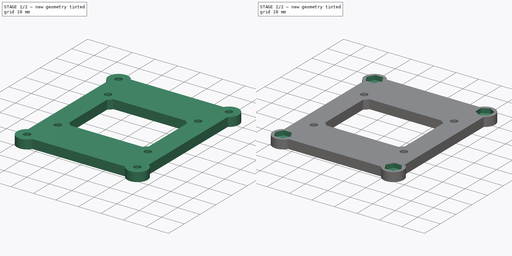
[diagram: build sequence overview — one tinted view per stage of 2, left to right]
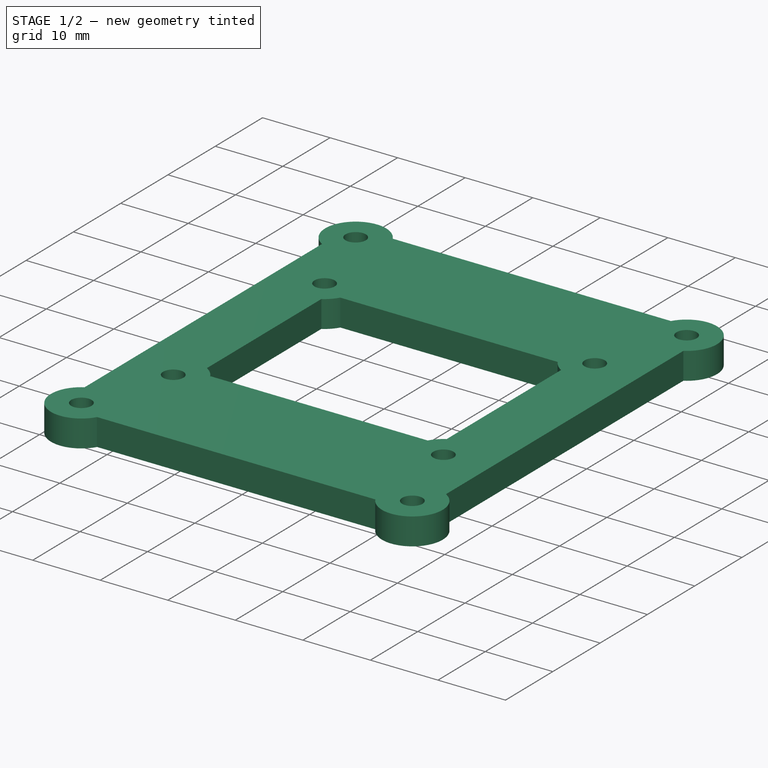
[diagram: stage 1 of 2 — iso view after this stage's code; geometry added in this stage tinted green]
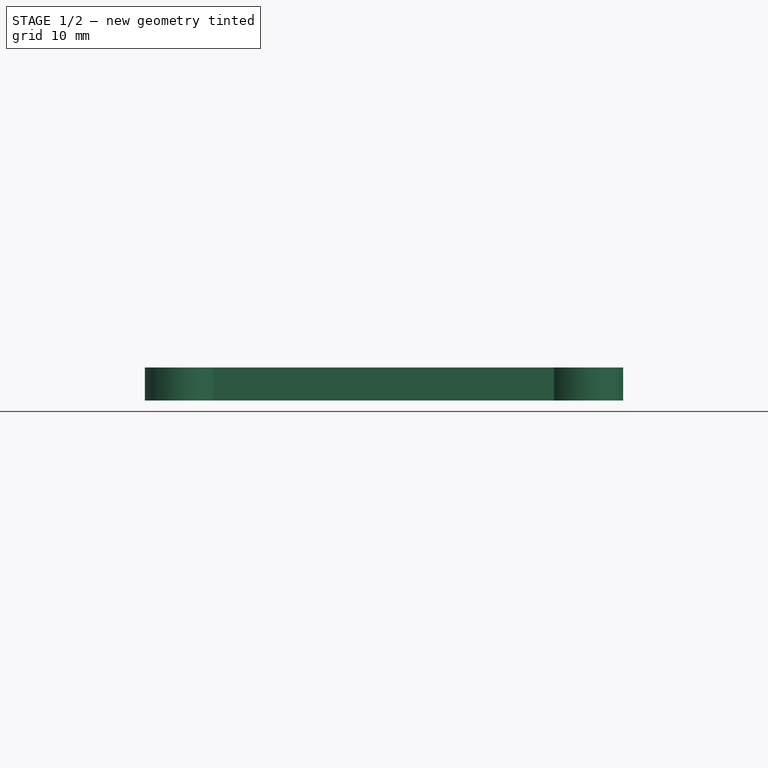
[diagram: stage 1 of 2 — front view after this stage's code; geometry added in this stage tinted green]
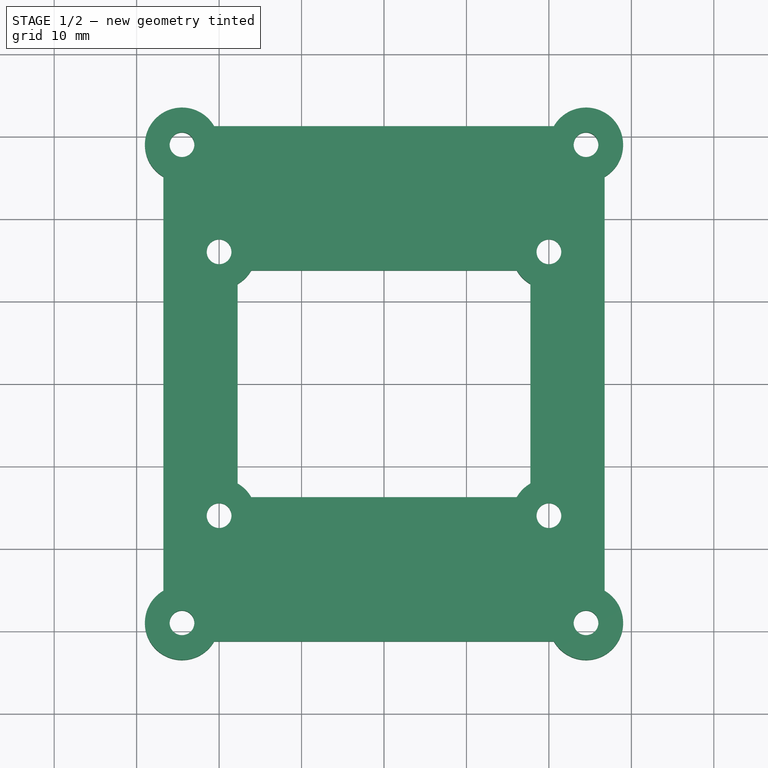
[diagram: stage 1 of 2 — top view after this stage's code; geometry added in this stage tinted green]
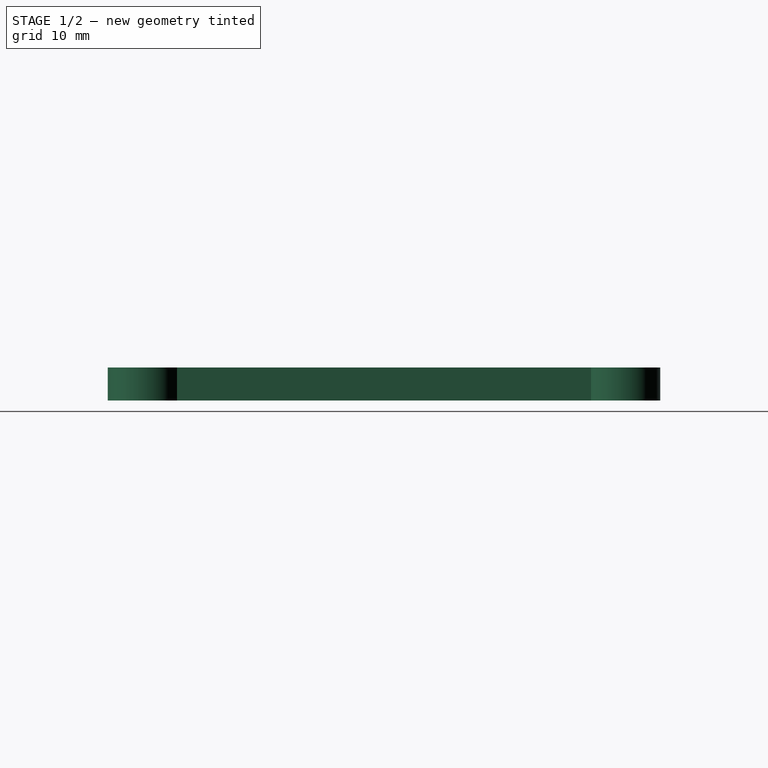
[diagram: stage 1 of 2 — right view after this stage's code; geometry added in this stage tinted green]
FCSTD DOCUMENT  (FreeCAD 0.17R13528 (Git))
Label: baseToRaspi
License: All rights reserved
LicenseURL: http://en.wikipedia.org/wiki/All_rights_reserved
objects: Sketcher::SketchObject×3, PartDesign::Pad×1, PartDesign::Hole×1, PartDesign::Pocket×1, PartDesign::Body×1
note: 10 computed .brp shape members not serialized (recipe doc carries the construction recipe); baked Part::Feature solids carry a one-line shape summary decoded from their .brp

FEATURE [Sketcher::SketchObject] Sketch
  MapMode = 5
  Support = -> [XY_Plane]
  sketch-geometry (54):
    g0: LineSegment [constr] StartX=-24.5 StartY=29 StartZ=0 EndX=24.5 EndY=29 EndZ=0
    g1: LineSegment [constr] StartX=-24.5 StartY=-29 StartZ=0 EndX=24.5 EndY=-29 EndZ=0
    g2: LineSegment [constr] StartX=-24.5 StartY=29 StartZ=0 EndX=-24.5 EndY=-29 EndZ=0
    g3: LineSegment [constr] StartX=24.5 StartY=29 StartZ=0 EndX=24.5 EndY=-29 EndZ=0
    g4: Circle CenterX=-24.5 CenterY=29 CenterZ=0 NormalX=0 NormalY=0 NormalZ=1 AngleXU=0 Radius=1.5
    g5: Circle CenterX=-24.5 CenterY=-29 CenterZ=0 NormalX=0 NormalY=0 NormalZ=1 AngleXU=0 Radius=1.5
    g6: Circle CenterX=24.5 CenterY=-29 CenterZ=0 NormalX=0 NormalY=0 NormalZ=1 AngleXU=0 Radius=1.5
    g7: Circle CenterX=24.5 CenterY=29 CenterZ=0 NormalX=0 NormalY=0 NormalZ=1 AngleXU=0 Radius=1.5
    g8: LineSegment [constr] StartX=-20 StartY=16 StartZ=0 EndX=-20 EndY=-16 EndZ=0
    g9: LineSegment [constr] StartX=20 StartY=-16 StartZ=0 EndX=20 EndY=16 EndZ=0
    g10: Circle CenterX=-20 CenterY=16 CenterZ=0 NormalX=0 NormalY=0 NormalZ=1 AngleXU=0 Radius=1.5
    g11: Circle CenterX=20 CenterY=16 CenterZ=0 NormalX=0 NormalY=0 NormalZ=1 AngleXU=0 Radius=1.5
    g12: LineSegment [constr] StartX=-20 StartY=-16 StartZ=0 EndX=20 EndY=-16 EndZ=0
    g13: Circle CenterX=-20 CenterY=-16 CenterZ=0 NormalX=0 NormalY=0 NormalZ=1 AngleXU=0 Radius=1.5
    g14: GeomPoint X=-20 Y=-14.5 Z=0
    g15: GeomPoint X=-18.5 Y=-16 Z=0
    g16: Circle CenterX=20 CenterY=-16 CenterZ=0 NormalX=0 NormalY=0 NormalZ=1 AngleXU=0 Radius=1.5
    g17: LineSegment [constr] StartX=-20 StartY=16 StartZ=0 EndX=20 EndY=16 EndZ=0
    g18: GeomPoint X=0 Y=16 Z=0
    g19: GeomPoint X=-20 Y=0 Z=0
    g20: GeomPoint X=0 Y=29 Z=0
    g21: GeomPoint X=-24.5 Y=0 Z=0
    g22: ArcOfCircle CenterX=-20 CenterY=-16 CenterZ=0 NormalX=0 NormalY=0 NormalZ=1 AngleXU=0 Radius=4.5 StartAngle=0.523599 EndAngle=1.0472
    g23: ArcOfCircle CenterX=20 CenterY=16 CenterZ=0 NormalX=0 NormalY=0 NormalZ=1 AngleXU=0 Radius=4.5 StartAngle=3.66519 EndAngle=4.18879
    g24: ArcOfCircle CenterX=-20 CenterY=16 CenterZ=0 NormalX=0 NormalY=0 NormalZ=1 AngleXU=0 Radius=4.5 StartAngle=5.23599 EndAngle=5.75959
    g25: LineSegment StartX=-16.1029 StartY=13.75 StartZ=0 EndX=16.1029 EndY=13.75 EndZ=0
    g26: LineSegment StartX=-17.75 StartY=12.1029 StartZ=0 EndX=-17.75 EndY=-12.1029 EndZ=0
    g27: LineSegment StartX=17.75 StartY=-12.1029 StartZ=0 EndX=17.75 EndY=12.1029 EndZ=0
    g28: ArcOfCircle CenterX=20 CenterY=-16 CenterZ=0 NormalX=0 NormalY=0 NormalZ=1 AngleXU=0 Radius=4.5 StartAngle=2.0944 EndAngle=2.61799
    g29: LineSegment StartX=-16.1029 StartY=-13.75 StartZ=0 EndX=16.1029 EndY=-13.75 EndZ=0
    g30: LineSegment [constr] StartX=-17.75 StartY=12.1029 StartZ=0 EndX=-20 EndY=16 EndZ=0
    g31: LineSegment [constr] StartX=-20 StartY=16 StartZ=0 EndX=-16.1029 EndY=13.75 EndZ=0
    g32: LineSegment [constr] StartX=-16.1029 StartY=-13.75 StartZ=0 EndX=-20 EndY=-16 EndZ=0
    g33: LineSegment [constr] StartX=-17.75 StartY=-12.1029 StartZ=0 EndX=-20 EndY=-16 EndZ=0
    g34: LineSegment [constr] StartX=16.1029 StartY=-13.75 StartZ=0 EndX=20 EndY=-16 EndZ=0
    g35: LineSegment [constr] StartX=17.75 StartY=-12.1029 StartZ=0 EndX=20 EndY=-16 EndZ=0
    g36: LineSegment [constr] StartX=17.75 StartY=12.1029 StartZ=0 EndX=20 EndY=16 EndZ=0
    g37: LineSegment [constr] StartX=16.1029 StartY=13.75 StartZ=0 EndX=20 EndY=16 EndZ=0
    g38: ArcOfCircle CenterX=-24.5 CenterY=29 CenterZ=0 NormalX=0 NormalY=0 NormalZ=1 AngleXU=0 Radius=4.5 StartAngle=0.523599 EndAngle=4.18879
    g39: ArcOfCircle CenterX=-24.5 CenterY=-29 CenterZ=0 NormalX=0 NormalY=0 NormalZ=1 AngleXU=0 Radius=4.5 StartAngle=2.0944 EndAngle=5.75959
    g40: ArcOfCircle CenterX=24.5 CenterY=-29 CenterZ=0 NormalX=0 NormalY=0 NormalZ=1 AngleXU=0 Radius=4.5 StartAngle=3.66519 EndAngle=7.33038
    g41: ArcOfCircle CenterX=24.5 CenterY=29 CenterZ=0 NormalX=0 NormalY=0 NormalZ=1 AngleXU=0 Radius=4.5 StartAngle=5.23599 EndAngle=8.90118
    g42: LineSegment StartX=26.75 StartY=25.1029 StartZ=0 EndX=26.75 EndY=-25.1029 EndZ=0
    g43: LineSegment StartX=20.6029 StartY=-31.25 StartZ=0 EndX=-20.6029 EndY=-31.25 EndZ=0
    g44: LineSegment StartX=-26.75 StartY=-25.1029 StartZ=0 EndX=-26.75 EndY=25.1029 EndZ=0
    g45: LineSegment StartX=-20.6029 StartY=31.25 StartZ=0 EndX=20.6029 EndY=31.25 EndZ=0
    g46: LineSegment [constr] StartX=-26.75 StartY=25.1029 StartZ=0 EndX=-24.5 EndY=29 EndZ=0
    g47: LineSegment [constr] StartX=-24.5 StartY=-29 StartZ=0 EndX=-26.75 EndY=-25.1029 EndZ=0
    g48: LineSegment [constr] StartX=24.5 StartY=-29 StartZ=0 EndX=26.75 EndY=-25.1029 EndZ=0
    g49: LineSegment [constr] StartX=26.75 StartY=25.1029 StartZ=0 EndX=24.5 EndY=29 EndZ=0
    g50: LineSegment [constr] StartX=24.5 StartY=-29 StartZ=0 EndX=20.6029 EndY=-31.25 EndZ=0
    g51: LineSegment [constr] StartX=-24.5 StartY=-29 StartZ=0 EndX=-20.6029 EndY=-31.25 EndZ=0
    g52: LineSegment [constr] StartX=24.5 StartY=29 StartZ=0 EndX=20.6029 EndY=31.25 EndZ=0
    g53: LineSegment [constr] StartX=-20.6029 StartY=31.25 StartZ=0 EndX=-24.5 EndY=29 EndZ=0
  constraints (132):
    c: Horizontal(g0)
    c: Horizontal(g1)
    c: Coincident(g2,g0)
    c: Coincident(g2,g1)
    c: Vertical(g2)
    c: Coincident(g3,g0)
    c: Coincident(g3,g1)
    c: Vertical(g3)
    c: Coincident(g4,g0)
    c: Coincident(g5,g1)
    c: Coincident(g6,g1)
    c: Coincident(g7,g0)
    c: Radius(g4) = 1.5
    c: Radius(g5) = 1.5
    c: Radius(g6) = 1.5
    c: Radius(g7) = 1.5
    c: Vertical(g8)
    c: Vertical(g9)
    c: Coincident(g10,g8)
    c: Coincident(g11,g9)
    c: Coincident(g12,g8)
    c: Coincident(g12,g9)
    c: Horizontal(g12)
    c: Coincident(g13,g8)
    c: Radius(g10) = 1.5
    c: Radius(g11) = 1.5
    c: Radius(g13) = 1.5
    c: PointOnObject(g14,g13)
    c: PointOnObject(g14,g8)
    c: PointOnObject(g15,g13)
    c: PointOnObject(g15,g12)
    c: Coincident(g16,g9)
    c: Radius(g16) = 1.5
    c: Coincident(g17,g8)
    c: Coincident(g17,g9)
    c: Horizontal(g17)
    c: PointOnObject(g18,g-2)
    c: Symmetric(g17,g17,g18)
    c: PointOnObject(g19,g-1)
    c: Symmetric(g8,g8,g19)
    c: PointOnObject(g20,g-2)
    c: PointOnObject(g21,g-1)
    c: Symmetric(g2,g2,g21)
    c: Symmetric(g0,g0,g20)
    c: Coincident(g22,g8)
    c: Coincident(g23,g9)
    c: Coincident(g24,g8)
    c: Horizontal(g25)
    c: Vertical(g26)
    c: Vertical(g27)
    c: Coincident(g22,g26)
    c: Coincident(g24,g26)
    c: Coincident(g24,g25)
    c: Coincident(g23,g25)
    c: Coincident(g23,g27)
    c: Coincident(g28,g9)
    c: Coincident(g29,g22)
    c: Horizontal(g29)
    c: Coincident(g28,g27)
    c: Coincident(g28,g29)
    c: Coincident(g30,g24)
    c: Coincident(g30,g8)
    c: Angle(g8,g30) = 0.523599
    c: Coincident(g31,g8)
    c: Coincident(g31,g24)
    c: Coincident(g32,g22)
    c: Coincident(g32,g8)
    c: Coincident(g33,g22)
    c: Coincident(g33,g8)
    c: Coincident(g34,g28)
    c: Coincident(g34,g9)
    c: Coincident(g35,g27)
    c: Coincident(g35,g9)
    c: Coincident(g36,g23)
    c: Coincident(g36,g9)
    c: Coincident(g37,g23)
    c: Coincident(g37,g9)
    c: Angle(g17,g37) = 0.523599
    c: Angle(g36,g9) = 0.523599
    c: Angle(g9,g35) = 0.523599
    c: Angle(g12,g32) = 0.523599
    c: Angle(g33,g8) = 0.523599
    c: Coincident(g38,g0)
    c: Coincident(g39,g1)
    c: Coincident(g40,g1)
    c: Coincident(g41,g0)
    c: PointOnObject(g42,g41)
    c: PointOnObject(g42,g40)
    c: Vertical(g42)
    c: Horizontal(g43)
    c: PointOnObject(g44,g39)
    c: PointOnObject(g46,g38)
    c: Vertical(g44)
    c: Horizontal(g45)
    c: Coincident(g46,g0)
    c: Coincident(g47,g1)
    c: Coincident(g47,g44)
    c: Coincident(g48,g1)
    c: Coincident(g48,g42)
    c: Coincident(g49,g42)
    c: Coincident(g49,g0)
    c: PointOnObject(g39,g47)
    c: Coincident(g39,g43)
    c: Coincident(g38,g44)
    c: Coincident(g38,g45)
    c: Coincident(g41,g45)
    c: PointOnObject(g41,g49)
    c: PointOnObject(g40,g48)
    c: Coincident(g40,g43)
    c: Radius(g28) = 4.5
    c: Radius(g24) = 4.5
    c: Radius(g40) = 4.5
    c: Radius(g41) = 4.5
    c: Radius(g38) = 4.5
    c: Radius(g39) = 4.5
    c: Angle(g2,g47) = 0.523599
    c: Angle(g46,g2) = 0.523599
    c: Angle(g3,g49) = 0.523599
    c: Coincident(g50,g1)
    c: Coincident(g50,g40)
    c: Coincident(g51,g1)
    c: Coincident(g51,g39)
    c: Angle(g51,g1) = 0.523599
    c: Coincident(g52,g0)
    c: Coincident(g52,g41)
    c: Coincident(g53,g38)
    c: Coincident(g53,g0)
    c: Angle(g0,g53) = 0.523599
    c: Distance(g8) = 32
    c: Distance(g17) = 40
    c: Distance(g3) = 58
    c: Distance(g0) = 49
FEATURE [PartDesign::Pad] Pad
  Length = 4
  Length2 = 100
  Midplane = true
  Profile = -> Sketch
  Type = 0
FEATURE [Sketcher::SketchObject] Sketch001
  MapMode = 5
  Support = -> [XY_Plane]
  sketch-geometry (14):
    g0: Circle CenterX=-20 CenterY=16 CenterZ=0 NormalX=0 NormalY=0 NormalZ=1 AngleXU=0 Radius=2
    g1: Circle CenterX=-20 CenterY=-16 CenterZ=0 NormalX=0 NormalY=0 NormalZ=1 AngleXU=0 Radius=2
    g2: Circle CenterX=20 CenterY=-16 CenterZ=0 NormalX=0 NormalY=0 NormalZ=1 AngleXU=0 Radius=2
    g3: Circle CenterX=20 CenterY=16 CenterZ=0 NormalX=0 NormalY=0 NormalZ=1 AngleXU=0 Radius=2
    g4: LineSegment [constr] StartX=-20 StartY=16 StartZ=0 EndX=20 EndY=16 EndZ=0
    g5: LineSegment [constr] StartX=-20 StartY=-16 StartZ=0 EndX=-20 EndY=16 EndZ=0
    g6: LineSegment [constr] StartX=-20 StartY=-16 StartZ=0 EndX=20 EndY=-16 EndZ=0
    g7: LineSegment [constr] StartX=20 StartY=16 StartZ=0 EndX=20 EndY=-16 EndZ=0
    g8: GeomPoint X=0 Y=16 Z=0
    g9: GeomPoint X=20 Y=0 Z=0
    g10: Circle CenterX=-20 CenterY=-16 CenterZ=0 NormalX=0 NormalY=0 NormalZ=1 AngleXU=0 Radius=1.5
    g11: Circle CenterX=20 CenterY=-16 CenterZ=0 NormalX=0 NormalY=0 NormalZ=1 AngleXU=0 Radius=1.5
    g12: Circle CenterX=20 CenterY=16 CenterZ=0 NormalX=0 NormalY=0 NormalZ=1 AngleXU=0 Radius=1.5
    g13: Circle CenterX=-20 CenterY=16 CenterZ=0 NormalX=0 NormalY=0 NormalZ=1 AngleXU=0 Radius=1.5
  constraints (30):
    c: Radius(g3) = 2
    c: Radius(g2) = 2
    c: Radius(g1) = 2
    c: Radius(g0) = 2
    c: Coincident(g4,g0)
    c: Coincident(g4,g3)
    c: Horizontal(g4)
    c: Coincident(g5,g1)
    c: Coincident(g5,g0)
    c: Vertical(g5)
    c: Coincident(g6,g1)
    c: Coincident(g6,g2)
    c: Horizontal(g6)
    c: Coincident(g7,g3)
    c: Coincident(g7,g2)
    c: Vertical(g7)
    c: PointOnObject(g8,g-2)
    c: PointOnObject(g9,g-1)
    c: Symmetric(g7,g7,g9)
    c: Symmetric(g4,g4,g8)
    c: Distance(g4) = 40
    c: Distance(g7) = 32
    c: Coincident(g10,g1)
    c: Coincident(g11,g2)
    c: Coincident(g12,g3)
    c: Radius(g10) = 1.5
    c: Radius(g11) = 1.5
    c: Radius(g12) = 1.5
    c: Coincident(g13,g0)
    c: Radius(g13) = 1.5
FEATURE [PartDesign::Hole] Hole
  BaseFeature = -> Pad
  Depth = 1
  DepthType = 1
  Diameter = 6
  DrillPoint = 0
  DrillPointAngle = 118
  HoleCutCountersinkAngle = 90
  HoleCutDepth = 0
  HoleCutDiameter = 0
  HoleCutType = 0
  ModelActualThread = false
  Profile = -> Sketch001
  Tapered = false
  TaperedAngle = 90
  ThreadAngle = 0
  ThreadClass = 0
  ThreadCutOffInner = 0
  ThreadCutOffOuter = 0
  ThreadDirection = 0
  ThreadFit = 0
  ThreadPitch = 0
  ThreadSize = 0
  ThreadType = 0
  Threaded = false
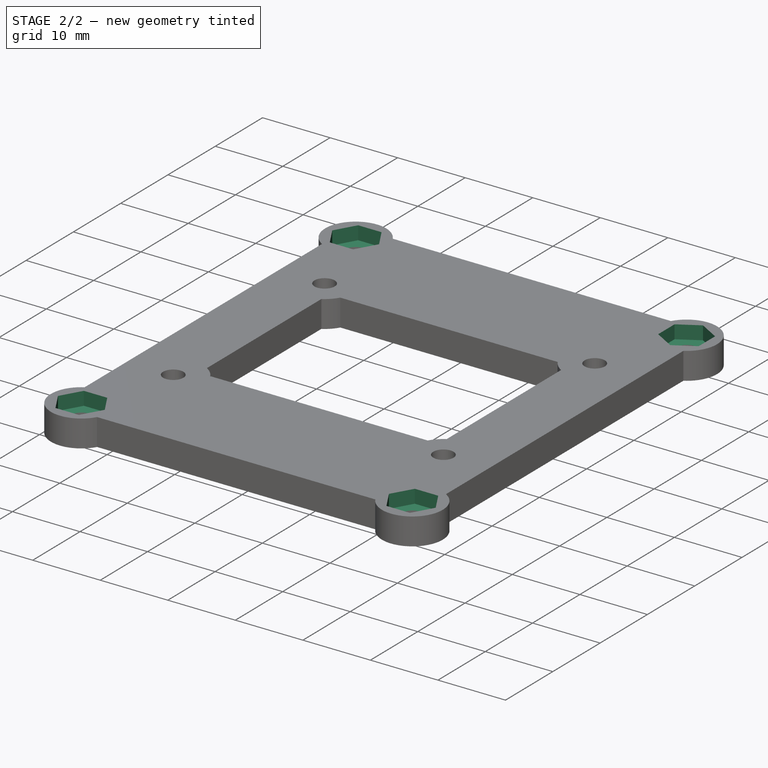
[diagram: stage 2 of 2 — iso view after this stage's code; geometry added in this stage tinted green]
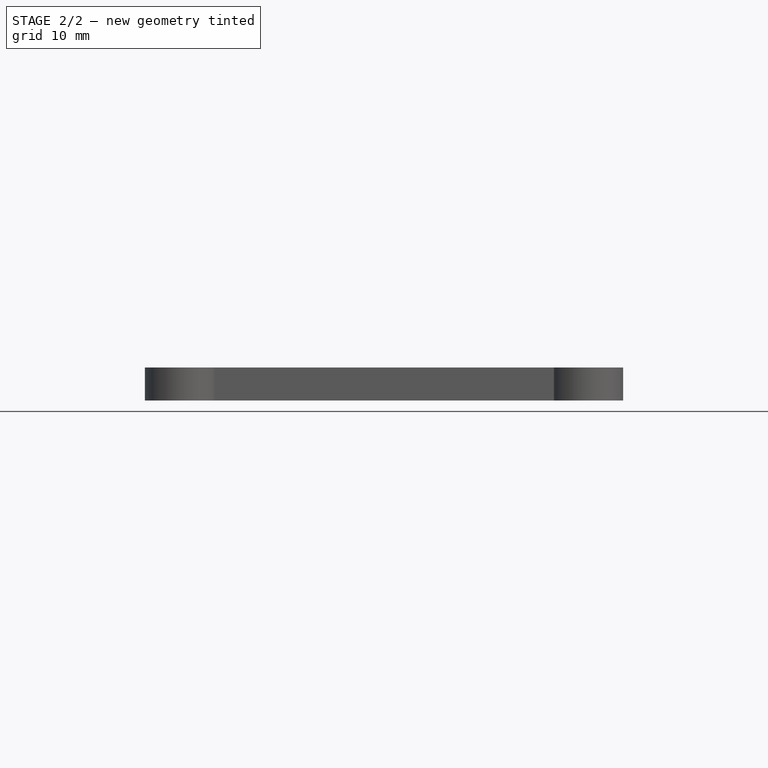
[diagram: stage 2 of 2 — front view after this stage's code; geometry added in this stage tinted green]
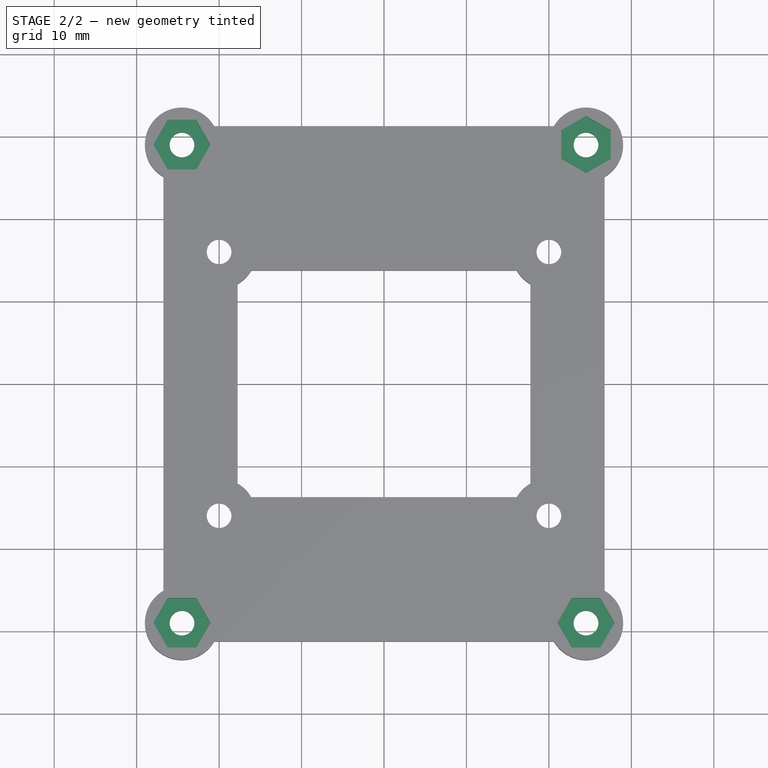
[diagram: stage 2 of 2 — top view after this stage's code; geometry added in this stage tinted green]
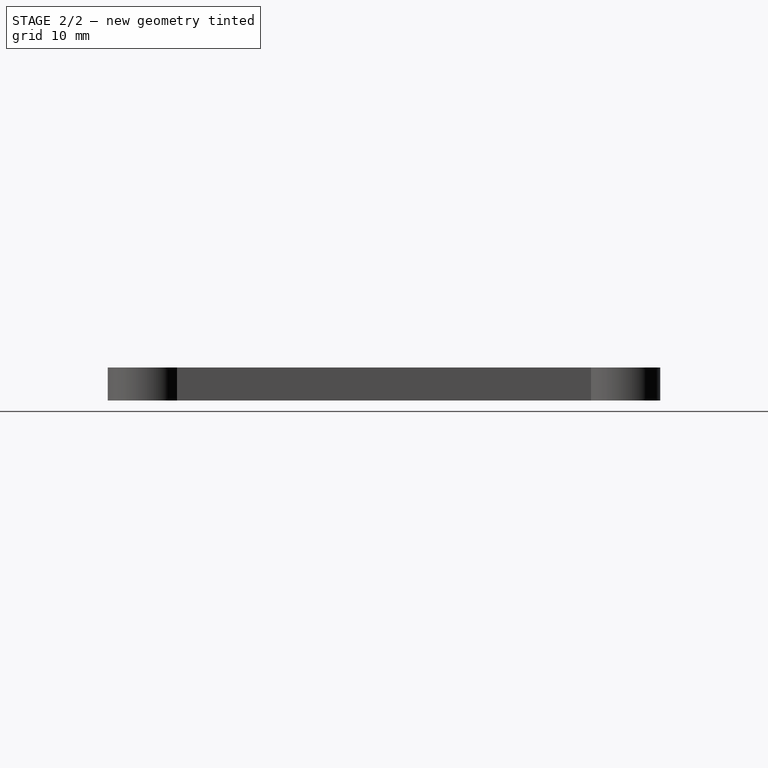
[diagram: stage 2 of 2 — right view after this stage's code; geometry added in this stage tinted green]
FEATURE [Sketcher::SketchObject] Sketch002
  MapMode = 5
  Support = -> [XY_Plane]
  sketch-geometry (46):
    g0: LineSegment StartX=-26.2321 StartY=26 StartZ=0 EndX=-22.7679 EndY=26 EndZ=0
    g1: LineSegment StartX=-22.7679 StartY=26 StartZ=0 EndX=-21.0359 EndY=29 EndZ=0
    g2: LineSegment StartX=-21.0359 StartY=29 StartZ=0 EndX=-22.7679 EndY=32 EndZ=0
    g3: LineSegment StartX=-22.7679 StartY=32 StartZ=0 EndX=-26.2321 EndY=32 EndZ=0
    g4: LineSegment StartX=-26.2321 StartY=32 StartZ=0 EndX=-27.9641 EndY=29 EndZ=0
    g5: LineSegment StartX=-27.9641 StartY=29 StartZ=0 EndX=-26.2321 EndY=26 EndZ=0
    g6: Circle [constr] CenterX=-24.5 CenterY=29 CenterZ=0 NormalX=0 NormalY=0 NormalZ=1 AngleXU=0 Radius=3.4641
    g7: LineSegment StartX=24.5 StartY=25.5359 StartZ=0 EndX=27.5 EndY=27.2679 EndZ=0
    g8: LineSegment StartX=27.5 StartY=27.2679 StartZ=0 EndX=27.5 EndY=30.7321 EndZ=0
    g9: LineSegment StartX=27.5 StartY=30.7321 StartZ=0 EndX=24.5 EndY=32.4641 EndZ=0
    g10: LineSegment StartX=24.5 StartY=32.4641 StartZ=0 EndX=21.5 EndY=30.7321 EndZ=0
    g11: LineSegment StartX=21.5 StartY=30.7321 StartZ=0 EndX=21.5 EndY=27.2679 EndZ=0
    g12: LineSegment StartX=21.5 StartY=27.2679 StartZ=0 EndX=24.5 EndY=25.5359 EndZ=0
    g13: Circle [constr] CenterX=24.5 CenterY=29 CenterZ=0 NormalX=0 NormalY=0 NormalZ=1 AngleXU=0 Radius=3.4641
    g14: LineSegment StartX=-26.2321 StartY=-32 StartZ=0 EndX=-22.7679 EndY=-32 EndZ=0
    g15: LineSegment StartX=-22.7679 StartY=-32 StartZ=0 EndX=-21.0359 EndY=-29 EndZ=0
    g16: LineSegment StartX=-21.0359 StartY=-29 StartZ=0 EndX=-22.7679 EndY=-26 EndZ=0
    g17: LineSegment StartX=-22.7679 StartY=-26 StartZ=0 EndX=-26.2321 EndY=-26 EndZ=0
    g18: LineSegment StartX=-26.2321 StartY=-26 StartZ=0 EndX=-27.9641 EndY=-29 EndZ=0
    g19: LineSegment StartX=-27.9641 StartY=-29 StartZ=0 EndX=-26.2321 EndY=-32 EndZ=0
    g20: Circle [constr] CenterX=-24.5 CenterY=-29 CenterZ=0 NormalX=0 NormalY=0 NormalZ=1 AngleXU=0 Radius=3.4641
    g21: LineSegment StartX=21.0359 StartY=-29 StartZ=0 EndX=22.7679 EndY=-32 EndZ=0
    g22: LineSegment StartX=22.7679 StartY=-32 StartZ=0 EndX=26.2321 EndY=-32 EndZ=0
    g23: LineSegment StartX=26.2321 StartY=-32 StartZ=0 EndX=27.9641 EndY=-29 EndZ=0
    g24: LineSegment StartX=27.9641 StartY=-29 StartZ=0 EndX=26.2321 EndY=-26 EndZ=0
    g25: LineSegment StartX=26.2321 StartY=-26 StartZ=0 EndX=22.7679 EndY=-26 EndZ=0
    g26: LineSegment StartX=22.7679 StartY=-26 StartZ=0 EndX=21.0359 EndY=-29 EndZ=0
    g27: Circle [constr] CenterX=24.5 CenterY=-29 CenterZ=0 NormalX=0 NormalY=0 NormalZ=1 AngleXU=0 Radius=3.4641
    g28: LineSegment [constr] StartX=-24.5 StartY=29 StartZ=0 EndX=-24.5 EndY=-29 EndZ=0
    g29: LineSegment [constr] StartX=24.5 StartY=-29 StartZ=0 EndX=-24.5 EndY=-29 EndZ=0
    g30: LineSegment [constr] StartX=-24.5 StartY=29 StartZ=0 EndX=24.5 EndY=29 EndZ=0
    g31: LineSegment [constr] StartX=24.5 StartY=29 StartZ=0 EndX=24.5 EndY=-29 EndZ=0
    g32: LineSegment [constr] StartX=-27.0981 StartY=30.5 StartZ=0 EndX=-21.9019 EndY=27.5 EndZ=0
    g33: LineSegment [constr] StartX=-27.0981 StartY=-27.5 StartZ=0 EndX=-21.9019 EndY=-30.5 EndZ=0
    g34: LineSegment [constr] StartX=27.0981 StartY=-27.5 StartZ=0 EndX=21.9019 EndY=-30.5 EndZ=0
    g35: LineSegment [constr] StartX=23 StartY=31.5981 StartZ=0 EndX=26 EndY=26.4019 EndZ=0
    g36: Circle CenterX=-24.5 CenterY=29 CenterZ=0 NormalX=0 NormalY=0 NormalZ=1 AngleXU=0 Radius=1.5
    g37: Circle CenterX=24.5 CenterY=29 CenterZ=0 NormalX=0 NormalY=0 NormalZ=1 AngleXU=0 Radius=1.5
    g38: Circle CenterX=-24.5 CenterY=-29 CenterZ=0 NormalX=0 NormalY=0 NormalZ=1 AngleXU=0 Radius=1.5
    g39: Circle CenterX=24.5 CenterY=-29 CenterZ=0 NormalX=0 NormalY=0 NormalZ=1 AngleXU=0 Radius=1.5
    g40: GeomPoint X=0 Y=29 Z=0
    g41: GeomPoint X=-24.5 Y=0 Z=0
    g42: GeomPoint X=24.5 Y=-26 Z=0
    g43: GeomPoint X=-24.5 Y=-26 Z=0
    g44: GeomPoint X=-24.5 Y=26 Z=0
    g45: GeomPoint X=21.5 Y=29 Z=0
  constraints (106):
    c: Coincident(g0,g1)
    c: Coincident(g1,g2)
    c: Coincident(g2,g3)
    c: Coincident(g3,g4)
    c: Coincident(g4,g5)
    c: Coincident(g5,g0)
    c: Equal(g0, g1-g5) x5
    c: PointOnObject(g0,g6)
    c: PointOnObject(g1,g6)
    c: PointOnObject(g2,g6)
    c: PointOnObject(g3,g6)
    c: PointOnObject(g4,g6)
    c: PointOnObject(g5,g6)
    c: Coincident(g7,g8)
    c: Coincident(g8,g9)
    c: Coincident(g9,g10)
    c: Coincident(g10,g11)
    c: Coincident(g11,g12)
    c: Coincident(g12,g7)
    c: Equal(g7, g8-g12) x5
    c: PointOnObject(g7,g13)
    c: PointOnObject(g8,g13)
    c: PointOnObject(g9,g13)
    c: PointOnObject(g10,g13)
    c: PointOnObject(g11,g13)
    c: PointOnObject(g12,g13)
    c: Coincident(g14,g15)
    c: Coincident(g15,g16)
    c: Coincident(g16,g17)
    c: Coincident(g17,g18)
    c: Coincident(g18,g19)
    c: Coincident(g19,g14)
    c: Equal(g14, g15-g19) x5
    c: PointOnObject(g14,g20)
    c: PointOnObject(g15,g20)
    c: PointOnObject(g16,g20)
    c: PointOnObject(g17,g20)
    c: PointOnObject(g18,g20)
    c: PointOnObject(g19,g20)
    c: Coincident(g21,g22)
    c: Coincident(g22,g23)
    c: Coincident(g23,g24)
    c: Coincident(g24,g25)
    c: Coincident(g25,g26)
    c: Coincident(g26,g21)
    c: Equal(g21, g22-g26) x5
    c: PointOnObject(g21,g27)
    c: PointOnObject(g22,g27)
    c: PointOnObject(g23,g27)
    c: PointOnObject(g24,g27)
    c: PointOnObject(g25,g27)
    c: PointOnObject(g26,g27)
    c: Coincident(g28,g6)
    c: Coincident(g28,g20)
    c: Vertical(g28)
    c: Coincident(g29,g27)
    c: Coincident(g29,g20)
    c: Horizontal(g29)
    c: Coincident(g30,g6)
    c: Coincident(g30,g13)
    c: Horizontal(g30)
    c: Coincident(g31,g13)
    c: Coincident(g31,g27)
    c: Vertical(g31)
    c: PointOnObject(g32,g4)
    c: PointOnObject(g32,g1)
    c: Perpendicular(g4,g32)
    c: Distance(g32) = 6
    c: PointOnObject(g33,g18)
    c: PointOnObject(g33,g15)
    c: Perpendicular(g18,g33)
    c: Distance(g33) = 6
    c: PointOnObject(g34,g24)
    c: PointOnObject(g34,g21)
    c: Perpendicular(g24,g34)
    c: Distance(g34) = 6
    c: PointOnObject(g35,g10)
    c: PointOnObject(g35,g7)
    c: Perpendicular(g10,g35)
    c: Distance(g35) = 6
    c: PointOnObject(g6,g32)
    c: PointOnObject(g13,g35)
    c: PointOnObject(g27,g34)
    c: PointOnObject(g20,g33)
    c: Coincident(g36,g6)
    c: Coincident(g37,g13)
    c: Coincident(g38,g20)
    c: Coincident(g39,g27)
    c: Radius(g38) = 1.5
    c: Radius(g39) = 1.5
    c: Radius(g37) = 1.5
    c: Radius(g36) = 1.5
    c: Distance(g30) = 49
    c: Distance(g28) = 58
    c: PointOnObject(g40,g-2)
    c: PointOnObject(g41,g-1)
    c: Symmetric(g28,g28,g41)
    c: Symmetric(g30,g30,g40)
    c: PointOnObject(g42,g31)
    c: Symmetric(g25,g25,g42)
    c: Symmetric(g17,g17,g43)
    c: PointOnObject(g43,g28)
    c: PointOnObject(g44,g28)
    c: Symmetric(g0,g0,g44)
    c: PointOnObject(g45,g30)
    c: Symmetric(g11,g11,g45)
FEATURE [PartDesign::Pocket] Pocket
  BaseFeature = -> Hole
  Length = 2.4
  Length2 = 100
  Offset = 2.4
  Profile = -> Sketch002
  Reversed = true
  Type = 0
FEATURE [PartDesign::Body] Body
  Group = -> [Sketch,Pad,Sketch001,Hole,Sketch002,Pocket]
  Origin = -> Origin
  Tip = -> Pocket
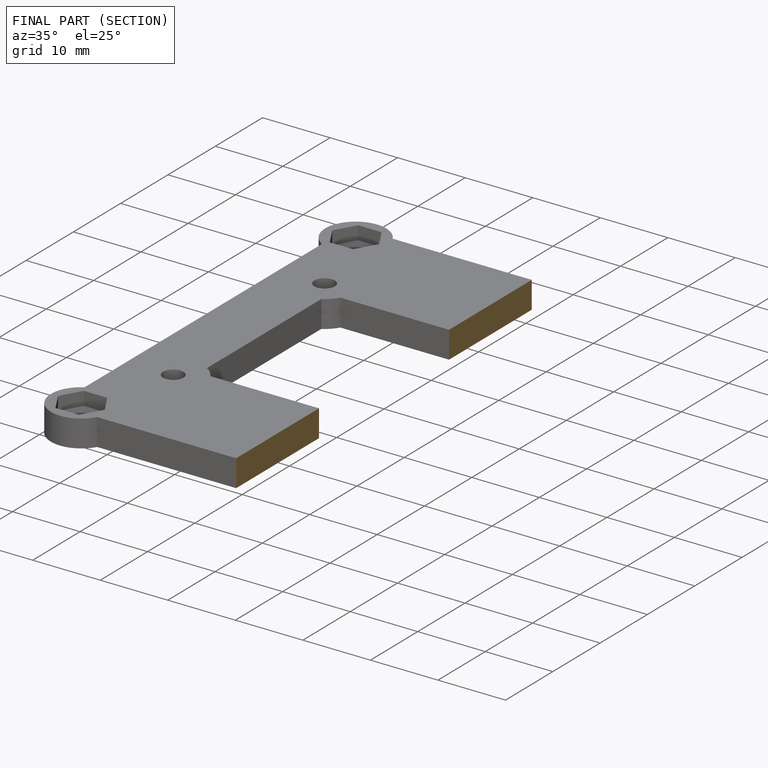
[diagram: finished part — half-section view (interior)]
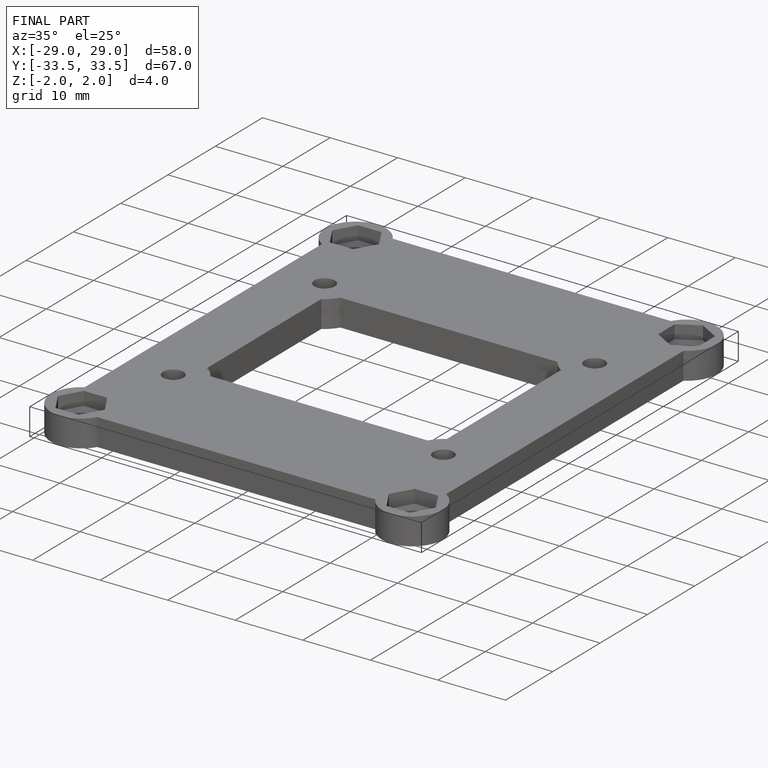
[diagram: finished part — iso view with bounding-box wireframe]
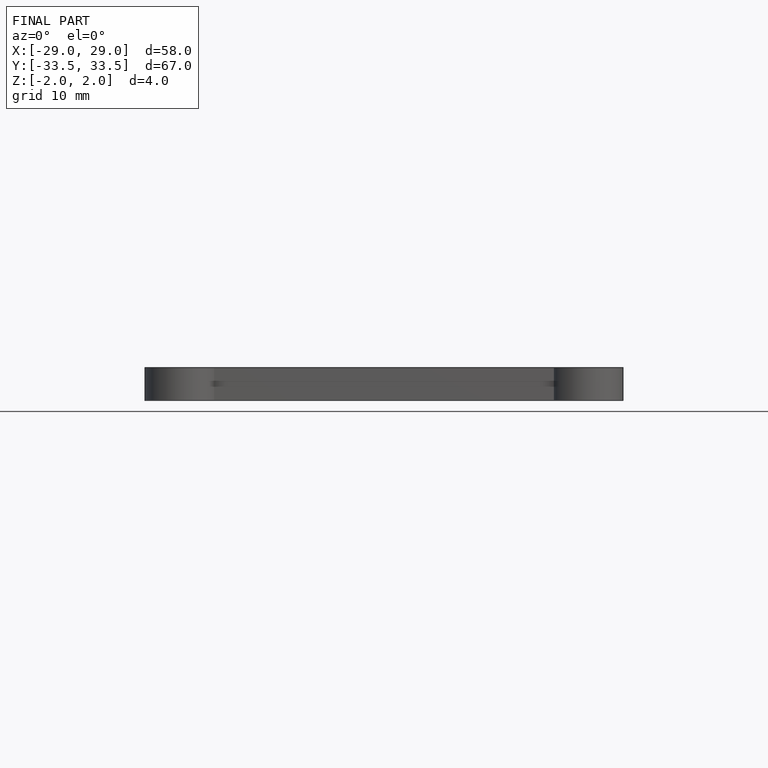
[diagram: finished part — front view with bounding-box wireframe]
